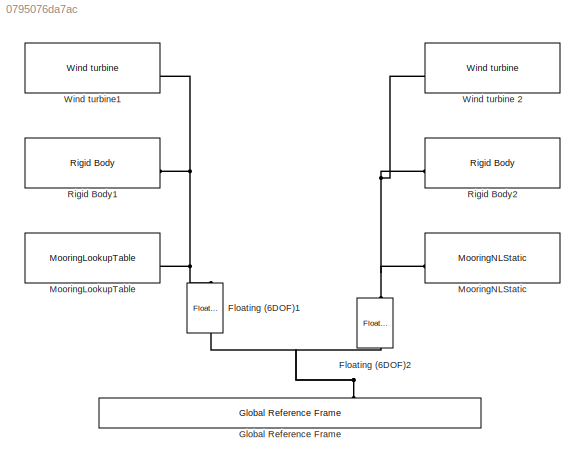
MODEL slx_0795076da7ac
KIND model
CONFIG AbsTol = auto
CONFIG EnableMultiTasking = off
CONFIG FixedStep = 0.05
CONFIG MaxStep = 0.05
CONFIG MinStep = auto
CONFIG RelTol = 1e-3
CONFIG SampleTimeConstraint = Unconstrained
CONFIG SolverName = ode4
CONFIG StartTime = 0
CONFIG StopTime = 500
BLOCK [Reference] Floating (6DOF)1  REF=WECSim_Lib_Constraints/Floating (6DOF)
  AttributesFormatString = %<constraint>
  NameLocation = right
  SourceBlock = WECSim_Lib_Constraints/Floating (6DOF)
  SourceType = Constraints
BLOCK [Reference] Floating (6DOF)2  REF=WECSim_Lib_Constraints/Floating (6DOF)
  AttributesFormatString = %<constraint>
  NameLocation = right
  SourceBlock = WECSim_Lib_Constraints/Floating (6DOF)
  SourceType = Constraints
BLOCK [Reference] Global Reference Frame  REF=WECSim_Lib_Frames/Global Reference Frame
  SourceBlock = WECSim_Lib_Frames/Global Reference Frame
  SourceType = Frames
BLOCK [Reference] MooringLookupTable  REF=WECSim_Lib_Moorings/MooringLookupTable
  AttributesFormatString = %<mooring>
  NameLocation = left
  SourceBlock = WECSim_Lib_Moorings/MooringLookupTable
BLOCK [Reference] MooringNLStatic  REF=WECSim_Lib_Moorings/MooringNLStatic
  AttributesFormatString = %<mooring>
  NameLocation = right
  SourceBlock = WECSim_Lib_Moorings/MooringNLStatic
BLOCK [Reference] Rigid Body1  REF=WECSim_Lib_Body_Elements/Rigid Body
  AttributesFormatString = %<body>
  NameLocation = left
  SourceBlock = WECSim_Lib_Body_Elements/Rigid Body
  SourceType = Rigid Body
BLOCK [Reference] Rigid Body2  REF=WECSim_Lib_Body_Elements/Rigid Body
  AttributesFormatString = %<body>
  NameLocation = right
  SourceBlock = WECSim_Lib_Body_Elements/Rigid Body
  SourceType = Rigid Body
BLOCK [Reference] Wind turbine 2  REF=MOST_Lib/Wind turbine
  NameLocation = right
  SourceBlock = MOST_Lib/Wind turbine
BLOCK [Reference] Wind turbine1  REF=MOST_Lib/Wind turbine
  NameLocation = left
  SourceBlock = MOST_Lib/Wind turbine
PNET net1: Floating (6DOF)1:LConn1 -- Floating (6DOF)2:LConn1 -- Global Reference Frame:RConn1
PNET net2: Floating (6DOF)1:RConn1 -- MooringLookupTable:LConn1 -- Rigid Body1:RConn1 -- Wind turbine1:RConn1
PNET net3: Floating (6DOF)2:RConn1 -- MooringNLStatic:LConn1 -- Rigid Body2:RConn1 -- Wind turbine 2:RConn1
note: PNET lines group multi-terminal physical nets as a canonical sorted terminal list (undirected conserving connections); 2-terminal nets keep the pairwise PLINE form
